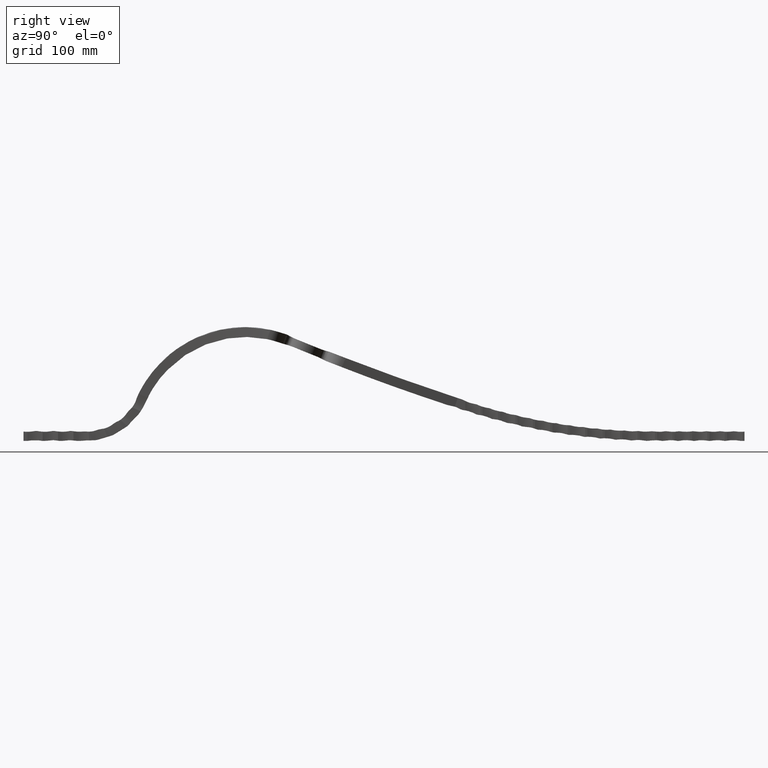
[diagram: clean part render]
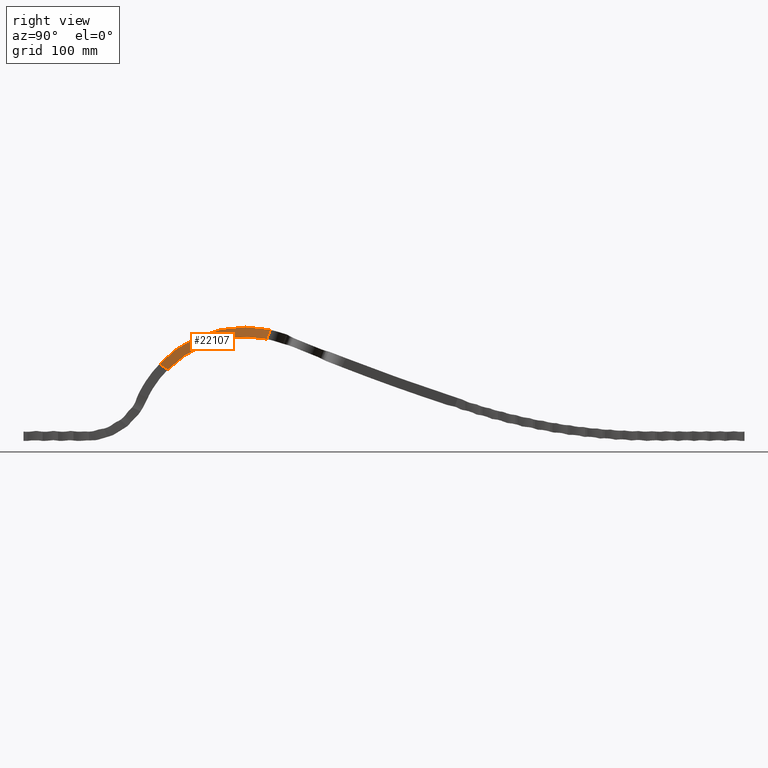
[diagram: same view with one face highlighted and labeled with its STEP entity id]
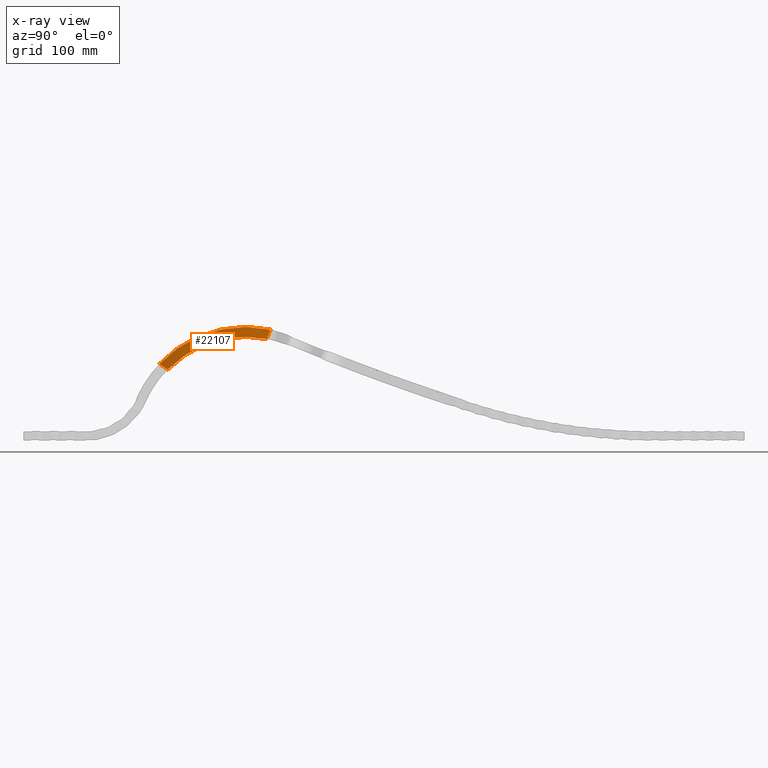
[diagram: x-ray of the same camera — body ghosted, the highlighted face saturated]
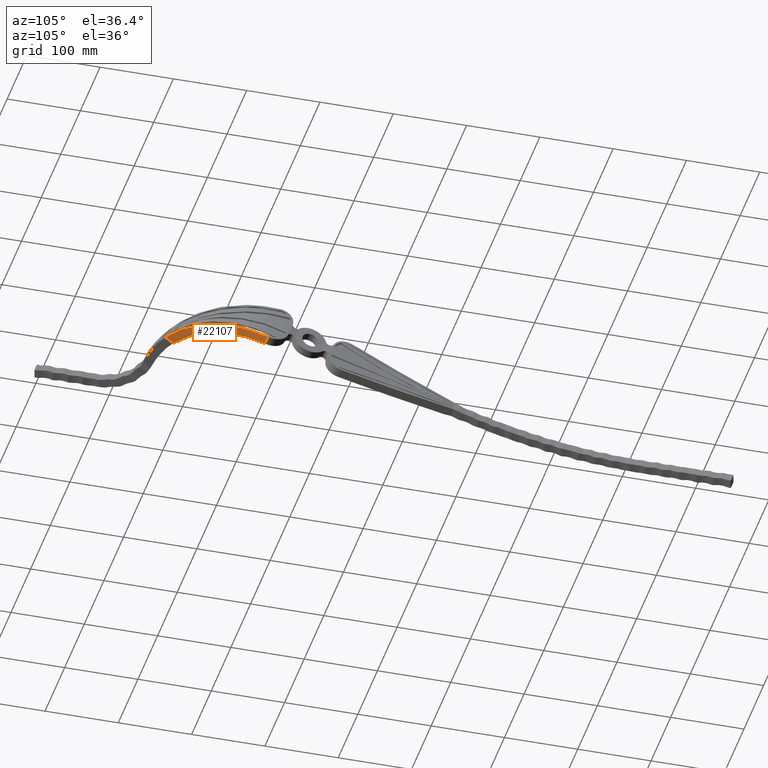
[diagram: same view with one face highlighted and labeled with its STEP entity id]
A machine part, right view. The second image highlights one B-rep face of the part: STEP entity #22107.
The next image is the same camera in x-ray: the body ghosted, the highlighted face saturated — about 0% of this face is hidden behind the body in this view.
A second angle (auxiliary view) of the same face is appended — the face is thin or edge-on in the first view.
In plain terms, the highlighted face is a freeform B-spline surface patch.
Its self-contained STEP definition (entity closure, byte-faithful):
#147 = CARTESIAN_POINT ( 'NONE',  ( 24.48646346229953252, 275.7864434070730226, 142.8384988011501946 ) ) ;
#228 = CARTESIAN_POINT ( 'NONE',  ( 31.40111196817683847, 323.4570690508268171, 140.3469253312913452 ) ) ;
#376 = CARTESIAN_POINT ( 'NONE',  ( 31.69179674539152813, 325.4135920189658577, 139.8908296798062452 ) ) ;
#432 = CARTESIAN_POINT ( 'NONE',  ( 10.48098481208229593, 197.0237919732014689, 94.41908805265039462 ) ) ;
#1164 = ORIENTED_EDGE ( 'NONE', *, *, #17436, .T. ) ;
#1647 = CARTESIAN_POINT ( 'NONE',  ( 29.04763907288837643, 307.3766878063631225, 142.9954522200588372 ) ) ;
#1697 = CARTESIAN_POINT ( 'NONE',  ( 29.04763907288837643, 307.3766878063631225, 142.9954522200588372 ) ) ;
#1729 = CARTESIAN_POINT ( 'NONE',  ( 24.48646346229953252, 275.7864434070730226, 142.8384988011501946 ) ) ;
#2057 = CARTESIAN_POINT ( 'NONE',  ( 31.53798033481900021, 323.1100981445480897, 134.0748759121391913 ) ) ;
#2137 = CARTESIAN_POINT ( 'NONE',  ( 9.520929086737558222, 192.6855464785289200, 90.15215642691859443 ) ) ;
#2206 = CARTESIAN_POINT ( 'NONE',  ( 12.45236372153644133, 206.7075699719948148, 102.3823249973433889 ) ) ;
#2356 = CARTESIAN_POINT ( 'NONE',  ( 31.62770345996588617, 324.4276481439358122, 137.3986268689158408 ) ) ;
#2736 = CARTESIAN_POINT ( 'NONE',  ( 19.54544046587882988, 246.4753345270457032, 123.3258282851132321 ) ) ;
#3201 = ORIENTED_EDGE ( 'NONE', *, *, #16021, .T. ) ;
#3295 = CARTESIAN_POINT ( 'NONE',  ( 6.500000000000000888, 169.5690333400998782, 84.03000000000021430 ) ) ;
#3368 = CARTESIAN_POINT ( 'NONE',  ( 35.00000000000000000, 342.8321880438948028, 121.3306709265175272 ) ) ;
#3441 = CARTESIAN_POINT ( 'NONE',  ( 17.01353652521131821, 231.5823333605534344, 117.2136652311057503 ) ) ;
#3509 = EDGE_CURVE ( 'NONE', #4310, #16911, #6753, .T. ) ;
#3523 = CARTESIAN_POINT ( 'NONE',  ( 12.45236372153644133, 206.7075699719948148, 102.3823249973433889 ) ) ;
#3942 = VERTEX_POINT ( 'NONE', #12910 ) ;
#4252 = CARTESIAN_POINT ( 'NONE',  ( 31.35101102252590977, 320.5598855372135745, 127.6626271848444958 ) ) ;
#4310 = VERTEX_POINT ( 'NONE', #10430 ) ;
#4480 = CARTESIAN_POINT ( 'NONE',  ( 30.61682522414102436, 315.9981486119199872, 128.5901802306548234 ) ) ;
#5396 = CARTESIAN_POINT ( 'NONE',  ( 26.89264426617562975, 292.4431068338980140, 143.8705199738357408 ) ) ;
#5442 = CARTESIAN_POINT ( 'NONE',  ( 14.60735672355143322, 211.2800527404557158, 121.2927245800700717 ) ) ;
#5525 = CARTESIAN_POINT ( 'NONE',  ( 17.01353652521131821, 226.0769102817442331, 129.0103885694663290 ) ) ;
#5576 = CARTESIAN_POINT ( 'NONE',  ( 8.940965189005902758, 190.1451500569174584, 87.49184999006671148 ) ) ;
#5598 = CARTESIAN_POINT ( 'NONE',  ( 12.45236372153644133, 198.9435802924956818, 112.8317330360008555 ) ) ;
#5645 = CARTESIAN_POINT ( 'NONE',  ( 8.940965189005902758, 190.1451500569174584, 87.49184999006671148 ) ) ;
#5734 = B_SPLINE_SURFACE_WITH_KNOTS ( 'NONE', 1, 3, ( 
 ( #3295, #10535, #16137, #17691, #19745, #12367, #7100, #16056, #1729, #5396, #1647, #14247, #12215, #14170 ),
 ( #8819, #17925, #15837, #3523, #14096, #3441, #14020, #6942, #23235, #19666, #7017, #17849, #12443, #3368 ) ),
 .UNSPECIFIED., .F., .F., .F.,
 ( 2, 2 ),
 ( 4, 1, 1, 1, 1, 1, 1, 1, 1, 1, 1, 4 ),
 ( 0.000000000000000000, 1.000000000000000000 ),
 ( 0.000000000000000000, 0.1465803552220910355, 0.1866071682981729207, 0.2932778041623333443, 0.3733084114068835335, 0.4400092251248545749, 0.5599907814785726190, 0.6266915969174202683, 0.7067222060955645757, 0.8133929439574555387, 0.8534198705446786049, 1.000000000000000000 ),
 .UNSPECIFIED. ) ;
#6018 = CARTESIAN_POINT ( 'NONE',  ( 31.17397347281836062, 319.4626563580913512, 127.8981850494291308 ) ) ;
#6096 = CARTESIAN_POINT ( 'NONE',  ( 26.89264426617562975, 292.4422136229245552, 130.8395317990377009 ) ) ;
#6193 = EDGE_CURVE ( 'NONE', #16911, #3942, #12702, .T. ) ;
#6753 = B_SPLINE_CURVE_WITH_KNOTS ( 'NONE', 3,
 ( #15913, #21731, #12533, #5645 ),
 .UNSPECIFIED., .F., .F.,
 ( 4, 4 ),
 ( 0.000000000000000000, 0.01320662860735832313 ),
 .UNSPECIFIED. ) ;
#6942 = CARTESIAN_POINT ( 'NONE',  ( 21.95455957631170563, 261.2537407441722053, 127.4368593579245328 ) ) ;
#7017 = CARTESIAN_POINT ( 'NONE',  ( 29.04763907288837643, 306.1240177065789112, 130.0378105005089253 ) ) ;
#7060 = VERTEX_POINT ( 'NONE', #376 ) ;
#7100 = CARTESIAN_POINT ( 'NONE',  ( 19.54544046587882988, 242.3121385374423653, 135.6739104339879987 ) ) ;
#7497 = CARTESIAN_POINT ( 'NONE',  ( 31.38812444750490371, 321.0473034971953439, 128.8860481610113879 ) ) ;
#7803 = EDGE_LOOP ( 'NONE', ( #12510, #1164, #3201, #19761 ) ) ;
#8709 = CARTESIAN_POINT ( 'NONE',  ( 31.69179674539152813, 325.4135920189658577, 139.8908296798062452 ) ) ;
#8819 = CARTESIAN_POINT ( 'NONE',  ( 6.500000000000000888, 179.7688568679849936, 75.97000000000015518 ) ) ;
#9234 = CARTESIAN_POINT ( 'NONE',  ( 31.35101102252590977, 320.5598855372135745, 127.6626271848444958 ) ) ;
#9305 = CARTESIAN_POINT ( 'NONE',  ( 31.41929487956921818, 321.4605427655394578, 129.9237328558702416 ) ) ;
#9459 = CARTESIAN_POINT ( 'NONE',  ( 31.44969321606166091, 321.8733966385674989, 130.9615945483593293 ) ) ;
#10430 = CARTESIAN_POINT ( 'NONE',  ( 8.555848335076204236, 179.0580507591327830, 94.65693363540231076 ) ) ;
#10535 = CARTESIAN_POINT ( 'NONE',  ( 7.894093899773706902, 175.9341278429447186, 91.30817511761161143 ) ) ;
#11034 = CARTESIAN_POINT ( 'NONE',  ( 31.37587373468083030, 320.8848907467505569, 128.4782136731085984 ) ) ;
#11182 = CARTESIAN_POINT ( 'NONE',  ( 31.68040095589795513, 325.2357960440471629, 139.4411403773296740 ) ) ;
#11661 = CARTESIAN_POINT ( 'NONE',  ( 21.95455957631170563, 261.2537407441722053, 127.4368593579245328 ) ) ;
#12215 = CARTESIAN_POINT ( 'NONE',  ( 33.60590353320763057, 338.1954965987708874, 136.4457446532998404 ) ) ;
#12367 = CARTESIAN_POINT ( 'NONE',  ( 17.01353652521131821, 226.0769102817442331, 129.0103885694663290 ) ) ;
#12443 = CARTESIAN_POINT ( 'NONE',  ( 33.60590353320763057, 334.3885140367817144, 124.0315446975274511 ) ) ;
#12510 = ORIENTED_EDGE ( 'NONE', *, *, #6193, .T. ) ;
#12533 = CARTESIAN_POINT ( 'NONE',  ( 8.795724522763633146, 186.4315295949245126, 89.85138202500689886 ) ) ;
#12692 = FACE_OUTER_BOUND ( 'NONE', #7803, .T. ) ;
#12702 = B_SPLINE_CURVE_WITH_KNOTS ( 'NONE', 3,
 ( #5576, #2137, #432, #2206, #14742, #20388, #2736, #11661, #18800, #6096, #20313, #4480, #6018, #4252 ),
 .UNSPECIFIED., .F., .F.,
 ( 4, 1, 1, 1, 1, 1, 1, 1, 1, 1, 1, 4 ),
 ( 0.08556670755384174210, 0.1465803552220910355, 0.1866071682981729207, 0.2932778041623333443, 0.3733084114068835335, 0.4400092251248546305, 0.5599907814785726190, 0.6266915969174202683, 0.7067222060955645757, 0.8133929439574555387, 0.8534198705446787159, 0.8720575299412234305 ),
 .UNSPECIFIED. ) ;
#12780 = CARTESIAN_POINT ( 'NONE',  ( 31.69179674539152813, 325.4135920189658577, 139.8908296798062452 ) ) ;
#12807 = CARTESIAN_POINT ( 'NONE',  ( 8.940965189005902758, 190.1451500569174584, 87.49184999006671148 ) ) ;
#12910 = CARTESIAN_POINT ( 'NONE',  ( 31.35101102252590977, 320.5598855372135745, 127.6626271848444958 ) ) ;
#14020 = CARTESIAN_POINT ( 'NONE',  ( 19.54544046587882988, 246.4753345270457032, 123.3258282851132321 ) ) ;
#14096 = CARTESIAN_POINT ( 'NONE',  ( 14.60735672355143322, 218.0099714029412894, 110.1341028514299865 ) ) ;
#14170 = CARTESIAN_POINT ( 'NONE',  ( 35.00000000000000000, 347.4046523577297876, 133.5000000000000284 ) ) ;
#14216 = CARTESIAN_POINT ( 'NONE',  ( 21.95455957631170563, 258.4423908678401745, 140.1609958003572558 ) ) ;
#14247 = CARTESIAN_POINT ( 'NONE',  ( 31.83111838003495464, 326.4715784169388826, 140.1958896398540730 ) ) ;
#14742 = CARTESIAN_POINT ( 'NONE',  ( 14.60735672355143322, 218.0099714029412894, 110.1341028514299865 ) ) ;
#14816 = CARTESIAN_POINT ( 'NONE',  ( 31.36350370782621511, 320.7224184348879135, 128.0704064645806852 ) ) ;
#14898 = CARTESIAN_POINT ( 'NONE',  ( 31.59738562911588389, 323.9748724496582781, 136.2555893629642298 ) ) ;
#15837 = CARTESIAN_POINT ( 'NONE',  ( 9.668874119021817037, 193.0345539711466358, 91.13862794265050127 ) ) ;
#15913 = CARTESIAN_POINT ( 'NONE',  ( 8.555848335076204236, 179.0580507591327830, 94.65693363540231076 ) ) ;
#16021 = EDGE_CURVE ( 'NONE', #7060, #4310, #18149, .T. ) ;
#16056 = CARTESIAN_POINT ( 'NONE',  ( 21.95455957631170563, 258.4423908678401745, 140.1609958003572558 ) ) ;
#16137 = CARTESIAN_POINT ( 'NONE',  ( 9.668874119021817037, 184.0373437160847629, 100.5738072483147647 ) ) ;
#16184 = CARTESIAN_POINT ( 'NONE',  ( 26.89264426617562975, 292.4431068338980140, 143.8705199738357408 ) ) ;
#16324 = CARTESIAN_POINT ( 'NONE',  ( 30.73031210888029108, 318.9199593777149175, 141.3030565000017020 ) ) ;
#16911 = VERTEX_POINT ( 'NONE', #12807 ) ;
#17436 = EDGE_CURVE ( 'NONE', #3942, #7060, #19228, .T. ) ;
#17691 = CARTESIAN_POINT ( 'NONE',  ( 12.45236372153644133, 198.9435802924956818, 112.8317330360008555 ) ) ;
#17849 = CARTESIAN_POINT ( 'NONE',  ( 31.83111838003495464, 323.6391092265576503, 127.4699514244386762 ) ) ;
#17925 = CARTESIAN_POINT ( 'NONE',  ( 7.894093899773706902, 185.6048814979163524, 82.64318766493441615 ) ) ;
#17976 = CARTESIAN_POINT ( 'NONE',  ( 10.35281921254455817, 187.7000293464227241, 103.5857632447301171 ) ) ;
#18149 = B_SPLINE_CURVE_WITH_KNOTS ( 'NONE', 3,
 ( #8709, #228, #16324, #1697, #16184, #147, #14216, #21439, #5525, #5442, #5598, #17976, #19633, #19796 ),
 .UNSPECIFIED., .F., .F.,
 ( 4, 1, 1, 1, 1, 1, 1, 1, 1, 1, 1, 4 ),
 ( 0.1159850672830618212, 0.1465801294553213951, 0.1866070560425444613, 0.2932777939044354243, 0.3733084030825797317, 0.4400092185214273810, 0.5599907748751453695, 0.6266915885931164665, 0.7067221958376666002, 0.8133928317018270793, 0.8534196447779089922, 0.9279372500566411830 ),
 .UNSPECIFIED. ) ;
#18423 = CARTESIAN_POINT ( 'NONE',  ( 31.66889139960228761, 325.0579386433843752, 138.9914782236168662 ) ) ;
#18800 = CARTESIAN_POINT ( 'NONE',  ( 24.48646346229953252, 277.1636570379741329, 129.8933976376974897 ) ) ;
#19228 = B_SPLINE_CURVE_WITH_KNOTS ( 'NONE', 3,
 ( #9234, #14816, #11034, #7497, #9305, #9459, #22049, #21971, #2057, #21817, #14898, #2356, #20013, #18423, #11182, #12780 ),
 .UNSPECIFIED., .F., .F.,
 ( 4, 3, 3, 3, 3, 4 ),
 ( 0.000000000000000000, 0.001317464443145120387, 0.004669591518757322535, 0.008020150594580771966, 0.01170961257582299637, 0.01316070036818918314 ),
 .UNSPECIFIED. ) ;
#19633 = CARTESIAN_POINT ( 'NONE',  ( 9.264288725570933636, 182.3986225691373022, 98.24581293634622625 ) ) ;
#19666 = CARTESIAN_POINT ( 'NONE',  ( 26.89264426617562975, 292.4422136229245552, 130.8395317990377009 ) ) ;
#19745 = CARTESIAN_POINT ( 'NONE',  ( 14.60735672355143322, 211.2800527404557158, 121.2927245800700717 ) ) ;
#19761 = ORIENTED_EDGE ( 'NONE', *, *, #3509, .T. ) ;
#19796 = CARTESIAN_POINT ( 'NONE',  ( 8.555848335076204236, 179.0580507591327830, 94.65693363540231076 ) ) ;
#20013 = CARTESIAN_POINT ( 'NONE',  ( 31.65726475871777268, 324.8800185688504598, 138.5418439168998361 ) ) ;
#20313 = CARTESIAN_POINT ( 'NONE',  ( 29.04763907288837643, 306.1240177065789112, 130.0378105005089253 ) ) ;
#20388 = CARTESIAN_POINT ( 'NONE',  ( 17.01353652521131821, 231.5823333605534344, 117.2136652311057503 ) ) ;
#21439 = CARTESIAN_POINT ( 'NONE',  ( 19.54544046587882988, 242.3121385374423653, 135.6739104339879987 ) ) ;
#21731 = CARTESIAN_POINT ( 'NONE',  ( 8.669008473530128711, 182.7367320783224045, 92.24157683194432877 ) ) ;
#21817 = CARTESIAN_POINT ( 'NONE',  ( 31.56625311258984112, 323.5216704133113694, 135.1127434541959929 ) ) ;
#21971 = CARTESIAN_POINT ( 'NONE',  ( 31.50903561228891903, 322.6981740387360560, 133.0371658699130251 ) ) ;
#22049 = CARTESIAN_POINT ( 'NONE',  ( 31.47937135498857231, 322.2858818063763238, 131.9996229723865895 ) ) ;
#22107 = ADVANCED_FACE ( 'NONE', ( #12692 ), #5734, .T. ) ;
#23235 = CARTESIAN_POINT ( 'NONE',  ( 24.48646346229953252, 277.1636570379741329, 129.8933976376974897 ) ) ;